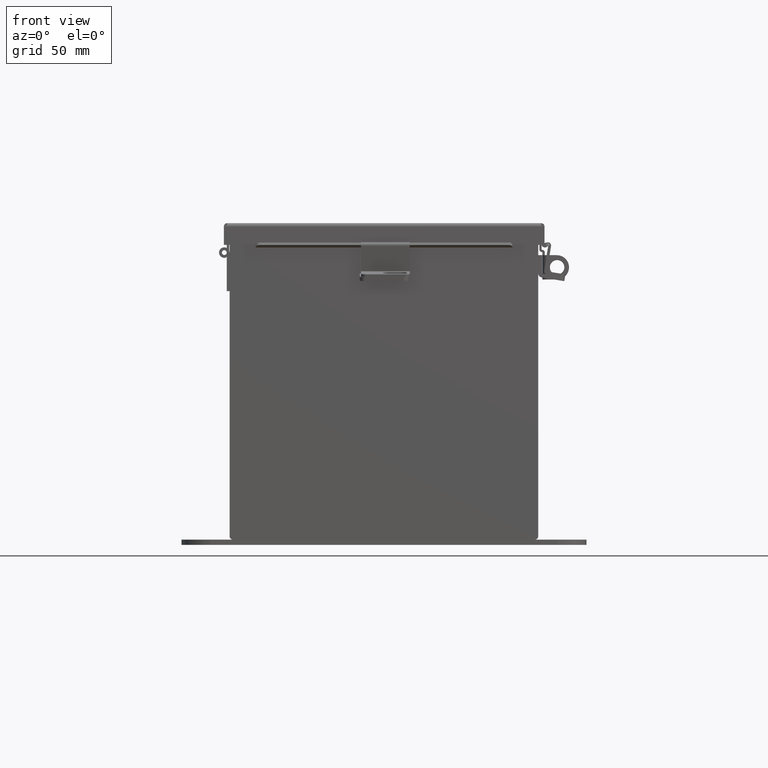
[diagram: clean part render]
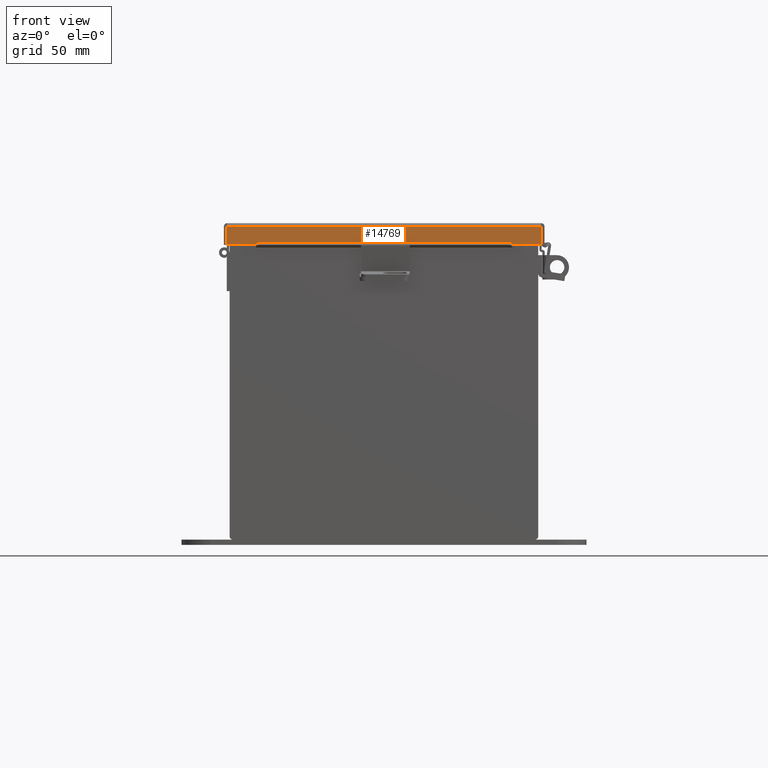
[diagram: same view with one face highlighted and labeled with its STEP entity id]
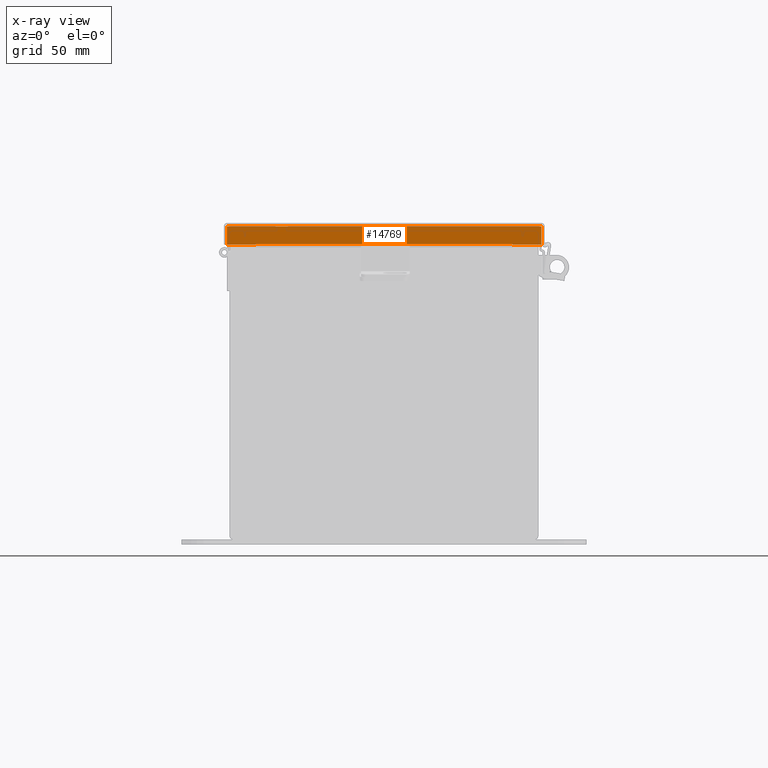
[diagram: x-ray of the same camera — body ghosted, the highlighted face saturated]
A machine part, front view. The second image highlights one B-rep face of the part: STEP entity #14769.
The next image is the same camera in x-ray: the body ghosted, the highlighted face saturated — about 0% of this face is hidden behind the body in this view.
In plain terms, the highlighted planar face has unit normal (0, 1, -0).
Its self-contained STEP definition (entity closure, byte-faithful):
#199 = EDGE_CURVE ( 'NONE', #9757, #2420, #6406, .T. ) ;
#805 = EDGE_CURVE ( 'NONE', #2420, #12185, #14587, .T. ) ;
#872 = DIRECTION ( 'NONE',  ( 1.000000000000000000, -1.053430780678039200E-030, 1.183291357831513000E-030 ) ) ;
#1013 = VECTOR ( 'NONE', #13956, 39.37007874015748100 ) ;
#1461 = VERTEX_POINT ( 'NONE', #5425 ) ;
#1463 = ORIENTED_EDGE ( 'NONE', *, *, #199, .F. ) ;
#1528 = ORIENTED_EDGE ( 'NONE', *, *, #7162, .F. ) ;
#1575 = CARTESIAN_POINT ( 'NONE',  ( -3.324478932188148100, -6.156250000000003600, 0.4717115427318799800 ) ) ;
#1783 = CARTESIAN_POINT ( 'NONE',  ( -4.074478932188157800, -6.156250000000000900, 0.0000000000000000000 ) ) ;
#1975 = VECTOR ( 'NONE', #15340, 39.37007874015748100 ) ;
#2278 = EDGE_CURVE ( 'NONE', #8902, #5706, #5777, .T. ) ;
#2307 = LINE ( 'NONE', #2812, #14922 ) ;
#2420 = VERTEX_POINT ( 'NONE', #9462 ) ;
#2529 = VECTOR ( 'NONE', #14125, 39.37007874015748100 ) ;
#2637 = ORIENTED_EDGE ( 'NONE', *, *, #805, .F. ) ;
#2770 = DIRECTION ( 'NONE',  ( -2.366582715663026000E-030, -7.009925220120872600E-014, -1.000000000000000000 ) ) ;
#2812 = CARTESIAN_POINT ( 'NONE',  ( 4.268512490100411300E-018, -6.156250000000003600, 0.4873000000000000100 ) ) ;
#2970 = VECTOR ( 'NONE', #2770, 39.37007874015748100 ) ;
#3166 = CARTESIAN_POINT ( 'NONE',  ( -4.156250000000021300, -6.156250000000000900, 0.01299999999999901400 ) ) ;
#3209 = CARTESIAN_POINT ( 'NONE',  ( -4.074478932188157800, -6.156250000000003600, 0.4873000000000000100 ) ) ;
#3236 = ORIENTED_EDGE ( 'NONE', *, *, #2278, .T. ) ;
#3622 = ORIENTED_EDGE ( 'NONE', *, *, #4401, .F. ) ;
#3662 = EDGE_CURVE ( 'NONE', #6256, #1461, #14147, .T. ) ;
#3980 = CARTESIAN_POINT ( 'NONE',  ( 3.324478932188144100, -6.156250000000003600, 0.4873000000000011200 ) ) ;
#4002 = AXIS2_PLACEMENT_3D ( 'NONE', #13301, #5993, #14551 ) ;
#4059 = DIRECTION ( 'NONE',  ( -1.000000000000000000, 1.052362063738843600E-030, 8.216084191470273400E-018 ) ) ;
#4399 = DIRECTION ( 'NONE',  ( -1.000000000000000000, 1.078082683966195600E-030, -1.183291357831513000E-030 ) ) ;
#4401 = EDGE_CURVE ( 'NONE', #5307, #5706, #4648, .T. ) ;
#4648 = LINE ( 'NONE', #1783, #1013 ) ;
#4944 = CARTESIAN_POINT ( 'NONE',  ( 4.074478932188154300, -6.156250000000000900, 0.01299999999999901400 ) ) ;
#5307 = VERTEX_POINT ( 'NONE', #9621 ) ;
#5425 = CARTESIAN_POINT ( 'NONE',  ( 4.074478932188154300, -6.156250000000003600, 0.4872999999999989000 ) ) ;
#5706 = VERTEX_POINT ( 'NONE', #3209 ) ;
#5777 = LINE ( 'NONE', #10418, #2529 ) ;
#5993 = DIRECTION ( 'NONE',  ( -1.080365830438993800E-030, 1.000000000000000000, 4.484872552701425900E-015 ) ) ;
#6256 = VERTEX_POINT ( 'NONE', #4944 ) ;
#6406 = LINE ( 'NONE', #9424, #6782 ) ;
#6618 = DIRECTION ( 'NONE',  ( -1.183291357831513000E-030, -4.484872552701425900E-015, 1.000000000000000000 ) ) ;
#6782 = VECTOR ( 'NONE', #872, 39.37007874015748100 ) ;
#6847 = LINE ( 'NONE', #3166, #12965 ) ;
#7162 = EDGE_CURVE ( 'NONE', #6256, #5307, #6847, .T. ) ;
#7641 = VECTOR ( 'NONE', #6618, 39.37007874015748100 ) ;
#8410 = PLANE ( 'NONE',  #4002 ) ;
#8450 = ORIENTED_EDGE ( 'NONE', *, *, #14572, .T. ) ;
#8902 = VERTEX_POINT ( 'NONE', #15168 ) ;
#8965 = EDGE_LOOP ( 'NONE', ( #15771, #3236, #3622, #1528, #11994, #8450, #2637, #1463 ) ) ;
#9276 = EDGE_CURVE ( 'NONE', #8902, #9757, #9455, .T. ) ;
#9298 = CARTESIAN_POINT ( 'NONE',  ( 3.324478932188144500, -6.156250000000004400, 0.4717115427318810900 ) ) ;
#9424 = CARTESIAN_POINT ( 'NONE',  ( -3.324478932188148100, -6.156250000000004400, 0.4717115427318799800 ) ) ;
#9455 = LINE ( 'NONE', #11313, #2970 ) ;
#9462 = CARTESIAN_POINT ( 'NONE',  ( 3.324478932188144500, -6.156250000000003600, 0.4717115427318810900 ) ) ;
#9621 = CARTESIAN_POINT ( 'NONE',  ( -4.074478932188158700, -6.156250000000000900, 0.01300000000000010700 ) ) ;
#9757 = VERTEX_POINT ( 'NONE', #1575 ) ;
#10418 = CARTESIAN_POINT ( 'NONE',  ( 4.268512490100411300E-018, -6.156250000000003600, 0.4873000000000000100 ) ) ;
#11313 = CARTESIAN_POINT ( 'NONE',  ( -3.324478932188148100, -6.156250000000003600, 0.4873000000000000100 ) ) ;
#11994 = ORIENTED_EDGE ( 'NONE', *, *, #3662, .T. ) ;
#12185 = VERTEX_POINT ( 'NONE', #3980 ) ;
#12965 = VECTOR ( 'NONE', #4399, 39.37007874015748100 ) ;
#13301 = CARTESIAN_POINT ( 'NONE',  ( 0.0000000000000000000, -6.156250000000000900, -2.841121913410833900E-014 ) ) ;
#13944 = CARTESIAN_POINT ( 'NONE',  ( 4.074478932188154300, -6.156250000000000900, -2.841121913410833900E-014 ) ) ;
#13956 = DIRECTION ( 'NONE',  ( -1.183291357831513000E-030, -4.484872552701425900E-015, 1.000000000000000000 ) ) ;
#14125 = DIRECTION ( 'NONE',  ( -1.000000000000000000, 1.052362063738843600E-030, 8.216084191470273400E-018 ) ) ;
#14147 = LINE ( 'NONE', #13944, #7641 ) ;
#14551 = DIRECTION ( 'NONE',  ( -1.183291357831513000E-030, -4.484872552701425900E-015, 1.000000000000000000 ) ) ;
#14572 = EDGE_CURVE ( 'NONE', #1461, #12185, #2307, .T. ) ;
#14587 = LINE ( 'NONE', #9298, #1975 ) ;
#14769 = ADVANCED_FACE ( 'NONE', ( #15690 ), #8410, .F. ) ;
#14922 = VECTOR ( 'NONE', #4059, 39.37007874015748100 ) ;
#15168 = CARTESIAN_POINT ( 'NONE',  ( -3.324478932188148100, -6.156250000000003600, 0.4873000000000000100 ) ) ;
#15340 = DIRECTION ( 'NONE',  ( 2.366582715663026000E-030, 7.009925220120812000E-014, 1.000000000000000000 ) ) ;
#15690 = FACE_OUTER_BOUND ( 'NONE', #8965, .T. ) ;
#15771 = ORIENTED_EDGE ( 'NONE', *, *, #9276, .F. ) ;